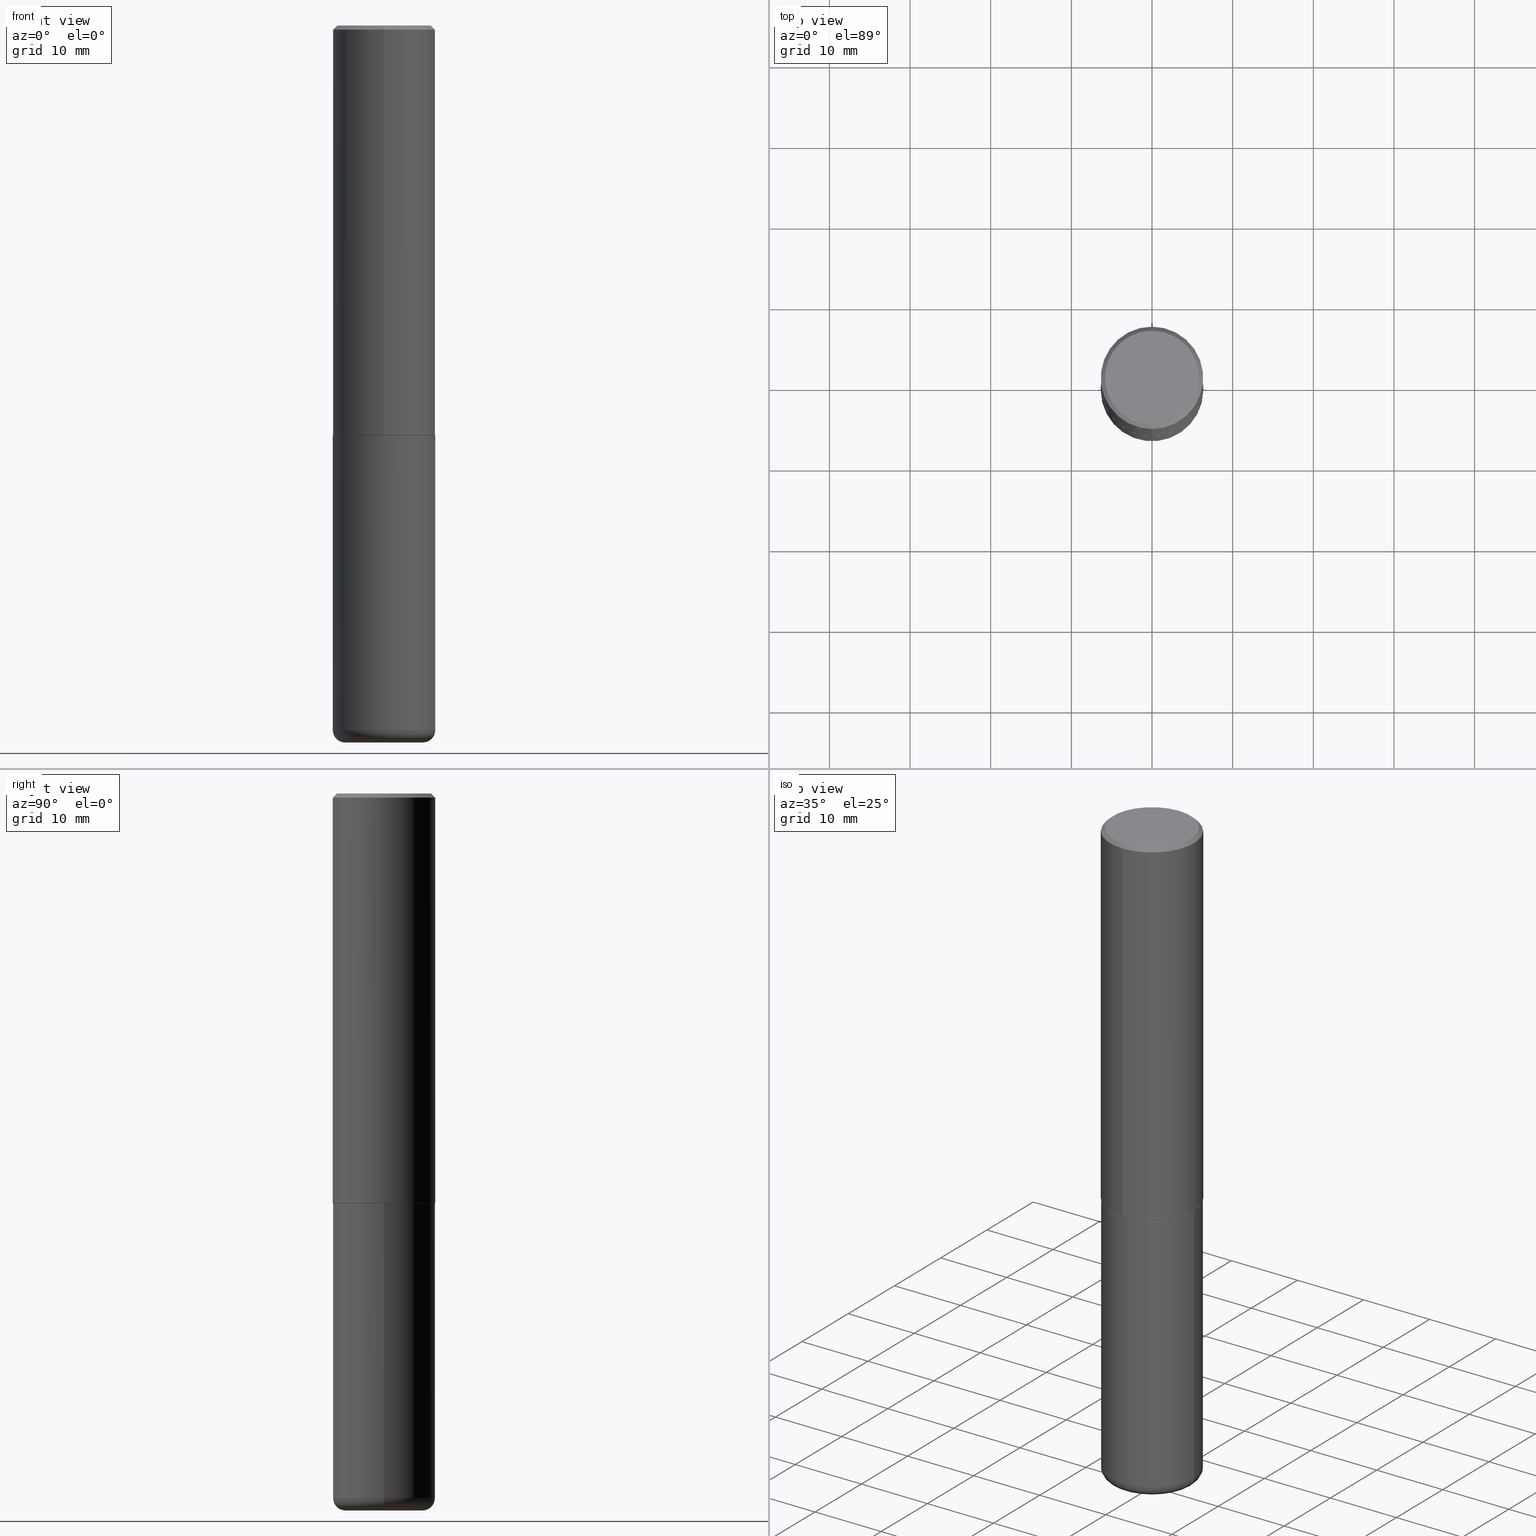
[diagram: canonical four-view strip — front | top / right | iso, engineering-drawing reading convention]
A machine part, canonical four-view strip (front | top / right | iso — engineering-drawing reading convention). The complete STEP part file that produces these views, byte-faithful:
ISO-10303-21;
HEADER;
FILE_DESCRIPTION (( 'STEP AP203' ),
    '1' );
FILE_NAME ('77363.STEP',
    '2024-05-02T19:32:36',
    ( '' ),
    ( '' ),
    'SwSTEP 2.0',
    'SolidWorks 2023',
    '' );
FILE_SCHEMA (( 'CONFIG_CONTROL_DESIGN' ));
ENDSEC;

DATA;
#1 = EDGE_LOOP ( 'NONE', ( #103, #31, #112, #63 ) ) ;
#2 = CIRCLE ( 'NONE', #313, 0.2500000000000000000 ) ;
#3 = EDGE_LOOP ( 'NONE', ( #298, #291, #269, #174 ) ) ;
#4 = CARTESIAN_POINT ( 'NONE',  ( -0.2499999999999999722, -1.023433896622016898E-14, -3.439999999999999947 ) ) ;
#5 = AXIS2_PLACEMENT_3D ( 'NONE', #301, #403, #48 ) ;
#6 = ADVANCED_FACE ( 'NONE', ( #373 ), #37, .F. ) ;
#7 = VERTEX_POINT ( 'NONE', #170 ) ;
#8 = DIRECTION ( 'NONE',  ( -2.444078991372175563E-29, 3.493471632758652550E-15, 1.000000000000000000 ) ) ;
#9 = ORIENTED_EDGE ( 'NONE', *, *, #261, .T. ) ;
#10 = CARTESIAN_POINT ( 'NONE',  ( -1.738757706743831360E-15, -0.2490000000000069935, -1.999999999999999112 ) ) ;
#11 = ORIENTED_EDGE ( 'NONE', *, *, #396, .T. ) ;
#12 = AXIS2_PLACEMENT_3D ( 'NONE', #366, #283, #413 ) ;
#13 = DIRECTION ( 'NONE',  ( -4.851104656540954809E-15, -0.7071067811865486830, -0.7071067811865462405 ) ) ;
#14 = ADVANCED_FACE ( 'NONE', ( #398 ), #368, .T. ) ;
#15 = DIRECTION ( 'NONE',  ( -2.445468806185136597E-29, 3.491481338843145583E-15, 1.000000000000000000 ) ) ;
#16 = ORIENTED_EDGE ( 'NONE', *, *, #249, .T. ) ;
#17 = APPLICATION_PROTOCOL_DEFINITION ( 'international standard', 'config_control_design', 1994, #329 ) ;
#18 = DIRECTION ( 'NONE',  ( -6.982962677686265133E-15, -1.000000000000000000, 3.291383124896702687E-15 ) ) ;
#19 = APPROVAL ( #395, 'UNSPECIFIED' ) ;
#20 = CIRCLE ( 'NONE', #254, 0.2299999999999997047 ) ;
#21 = DIRECTION ( 'NONE',  ( 1.000000000000000000, -6.982962677686266711E-15, 0.000000000000000000 ) ) ;
#22 = LOCAL_TIME ( 15, 32, 36.00000000000000000, #199 ) ;
#23 = PLANE ( 'NONE',  #365 ) ;
#24 = DIRECTION ( 'NONE',  ( 1.000000000000000000, -6.982962677686266711E-15, 4.876176775795935793E-29 ) ) ;
#25 = DIRECTION ( 'NONE',  ( -2.444078991372175563E-29, 3.493471632758652550E-15, 1.000000000000000000 ) ) ;
#26 = DIRECTION ( 'NONE',  ( -6.982962677686266711E-15, -1.000000000000000000, 3.493471632758652550E-15 ) ) ;
#27 = DIRECTION ( 'NONE',  ( 2.444078991372175563E-29, -3.493471632758652550E-15, -1.000000000000000000 ) ) ;
#28 = CIRCLE ( 'NONE', #323, 0.2500000000000000000 ) ;
#29 = UNCERTAINTY_MEASURE_WITH_UNIT (LENGTH_MEASURE( 1.000000000000000082E-05 ), #77, 'distance_accuracy_value', 'NONE');
#30 = EDGE_CURVE ( 'NONE', #194, #263, #225, .T. ) ;
#31 = ORIENTED_EDGE ( 'NONE', *, *, #183, .F. ) ;
#32 = EDGE_CURVE ( 'NONE', #399, #205, #100, .T. ) ;
#33 = CIRCLE ( 'NONE', #268, 0.2500000000000000000 ) ;
#34 = EDGE_LOOP ( 'NONE', ( #324, #415, #176, #407 ) ) ;
#35 = DIRECTION ( 'NONE',  ( -2.445468806185136597E-29, 3.491481338843145583E-15, 1.000000000000000000 ) ) ;
#36 = EDGE_LOOP ( 'NONE', ( #352, #42, #360, #195 ) ) ;
#37 = PLANE ( 'NONE',  #319 ) ;
#38 = ADVANCED_BREP_SHAPE_REPRESENTATION ( '77363', ( #230, #382, #40 ), #297 ) ;
#39 = AXIS2_PLACEMENT_3D ( 'NONE', #383, #251, #287 ) ;
#40 = AXIS2_PLACEMENT_3D ( 'NONE', #148, #273, #152 ) ;
#41 = PERSON_AND_ORGANIZATION_ROLE ( 'design_supplier' ) ;
#42 = ORIENTED_EDGE ( 'NONE', *, *, #228, .T. ) ;
#43 = ORIENTED_EDGE ( 'NONE', *, *, #183, .T. ) ;
#44 = FACE_OUTER_BOUND ( 'NONE', #36, .T. ) ;
#45 = VERTEX_POINT ( 'NONE', #139 ) ;
#46 = DIRECTION ( 'NONE',  ( 1.000000000000000000, -6.982962677686265133E-15, 4.883557194083112340E-29 ) ) ;
#47 = CARTESIAN_POINT ( 'NONE',  ( 8.412412693276869938E-29, -1.201069580562042103E-14, -3.439999999999999947 ) ) ;
#48 = DIRECTION ( 'NONE',  ( -6.982962677686266711E-15, -1.000000000000000000, 3.493471632758652550E-15 ) ) ;
#49 = VECTOR ( 'NONE', #241, 39.37007874015748143 ) ;
#50 = EDGE_LOOP ( 'NONE', ( #220, #369 ) ) ;
#51 = APPROVAL_DATE_TIME ( #374, #240 ) ;
#52 = CARTESIAN_POINT ( 'NONE',  ( 0.2499999999999999722, -1.375643647504198770E-14, -3.439999999999999947 ) ) ;
#53 = ADVANCED_FACE ( 'NONE', ( #336 ), #209, .T. ) ;
#54 = DIRECTION ( 'NONE',  ( -2.445468806185136597E-29, 3.491481338843145583E-15, 1.000000000000000000 ) ) ;
#55 = PRODUCT_DEFINITION_SHAPE ( 'NONE', 'NONE',  #197 ) ;
#56 = AXIS2_PLACEMENT_3D ( 'NONE', #59, #27, #92 ) ;
#57 = CARTESIAN_POINT ( 'NONE',  ( 0.1899999999999999745, -1.333745871438081265E-14, -3.439999999999999947 ) ) ;
#58 = DIRECTION ( 'NONE',  ( -2.444078991372175283E-29, 3.493471632758652550E-15, 1.000000000000000000 ) ) ;
#59 = CARTESIAN_POINT ( 'NONE',  ( 4.888157982744373443E-31, -6.986943265517335816E-17, -0.02000000000000009062 ) ) ;
#60 = EDGE_CURVE ( 'NONE', #70, #399, #175, .T. ) ;
#61 = CARTESIAN_POINT ( 'NONE',  ( -0.1899999999999999745, -1.066066460767623105E-14, -3.439999999999999947 ) ) ;
#62 = AXIS2_PLACEMENT_3D ( 'NONE', #328, #165, #359 ) ;
#63 = ORIENTED_EDGE ( 'NONE', *, *, #122, .T. ) ;
#64 = CARTESIAN_POINT ( 'NONE',  ( -0.2500000000000000000, -7.720472402253106025E-15, -2.000000000000000000 ) ) ;
#65 = ADVANCED_FACE ( 'NONE', ( #272 ), #211, .T. ) ;
#66 = DIRECTION ( 'NONE',  ( 4.937700262164538576E-15, 0.7071067811865437980, -0.7071067811865511255 ) ) ;
#67 = CIRCLE ( 'NONE', #151, 0.1899999999999999745 ) ;
#68 = LOCAL_TIME ( 15, 32, 36.00000000000000000, #245 ) ;
#69 = CYLINDRICAL_SURFACE ( 'NONE', #62, 0.2500000000000000000 ) ;
#70 = VERTEX_POINT ( 'NONE', #146 ) ;
#71 = ADVANCED_FACE ( 'NONE', ( #99 ), #258, .T. ) ;
#72 = VERTEX_POINT ( 'NONE', #293 ) ;
#73 = CYLINDRICAL_SURFACE ( 'NONE', #296, 0.2500000000000001110 ) ;
#74 = VECTOR ( 'NONE', #13, 39.37007874015748854 ) ;
#75 = PERSON_AND_ORGANIZATION ( #117, #248 ) ;
#76 = DIRECTION ( 'NONE',  ( -4.937700262165053702E-15, -0.7071067811866175168, 0.7071067811864775177 ) ) ;
#77 =( CONVERSION_BASED_UNIT ( 'INCH', #311 ) LENGTH_UNIT ( ) NAMED_UNIT ( #189 ) );
#78 = DIRECTION ( 'NONE',  ( -1.000000000000000000, 7.105427357600997914E-15, 0.000000000000000000 ) ) ;
#79 = CARTESIAN_POINT ( 'NONE',  ( 0.000000000000000000, 0.000000000000000000, 0.000000000000000000 ) ) ;
#80 = CARTESIAN_POINT ( 'NONE',  ( 1.606081415867839095E-15, 0.2299999999999997047, -6.474688858455407103E-16 ) ) ;
#81 = DIRECTION ( 'NONE',  ( 7.105427357601001859E-15, 1.000000000000000000, -3.491481338843145583E-15 ) ) ;
#82 = AXIS2_PLACEMENT_3D ( 'NONE', #57, #388, #86 ) ;
#83 =( LENGTH_UNIT ( ) NAMED_UNIT ( * ) SI_UNIT ( $, .METRE. ) );
#84 = ADVANCED_FACE ( 'NONE', ( #362 ), #73, .T. ) ;
#85 = DIRECTION ( 'NONE',  ( -1.000000000000000000, 6.982962677686265922E-15, -4.876176775795935793E-29 ) ) ;
#86 = DIRECTION ( 'NONE',  ( 1.000000000000000000, -6.982962677686274599E-15, 0.000000000000000000 ) ) ;
#87 = CIRCLE ( 'NONE', #144, 0.2500000000000000000 ) ;
#88 = PERSON_AND_ORGANIZATION ( #117, #248 ) ;
#89 = ORIENTED_EDGE ( 'NONE', *, *, #309, .T. ) ;
#90 = APPROVAL ( #136, 'UNSPECIFIED' ) ;
#91 = CARTESIAN_POINT ( 'NONE',  ( 4.888157982744351127E-29, -6.986943265517304311E-15, -2.000000000000000000 ) ) ;
#92 = DIRECTION ( 'NONE',  ( 6.982962677686265133E-15, 1.000000000000000000, -3.500180241882336472E-15 ) ) ;
#93 = AXIS2_PLACEMENT_3D ( 'NONE', #204, #15, #46 ) ;
#94 = CARTESIAN_POINT ( 'NONE',  ( 1.769251412042697971E-15, 0.2489999999999930047, -2.000000000000000888 ) ) ;
#95 = ADVANCED_FACE ( 'NONE', ( #198 ), #223, .T. ) ;
#96 = VERTEX_POINT ( 'NONE', #187 ) ;
#97 = LINE ( 'NONE', #256, #343 ) ;
#98 = CARTESIAN_POINT ( 'NONE',  ( 4.890937612370273194E-29, -6.982962677686291165E-15, -2.000000000000000000 ) ) ;
#99 = FACE_OUTER_BOUND ( 'NONE', #34, .T. ) ;
#100 = CIRCLE ( 'NONE', #143, 0.2500000000000000555 ) ;
#101 = CONICAL_SURFACE ( 'NONE', #56, 0.2500000000000000555, 0.7853981633974466137 ) ;
#102 = FACE_OUTER_BOUND ( 'NONE', #104, .T. ) ;
#103 = ORIENTED_EDGE ( 'NONE', *, *, #60, .F. ) ;
#104 = EDGE_LOOP ( 'NONE', ( #162, #390, #308, #356 ) ) ;
#105 = DIRECTION ( 'NONE',  ( -2.445468806185136597E-29, 3.491481338843145583E-15, 1.000000000000000000 ) ) ;
#106 = ORIENTED_EDGE ( 'NONE', *, *, #249, .F. ) ;
#107 = APPROVAL_ROLE ( '' ) ;
#108 = LINE ( 'NONE', #10, #111 ) ;
#109 = CARTESIAN_POINT ( 'NONE',  ( 8.412412693276869938E-29, -1.201069580562042103E-14, -3.439999999999999947 ) ) ;
#110 = CC_DESIGN_PERSON_AND_ORGANIZATION_ASSIGNMENT ( #276, #242, ( #114 ) ) ;
#111 = VECTOR ( 'NONE', #76, 39.37007874015748143 ) ;
#112 = ORIENTED_EDGE ( 'NONE', *, *, #418, .T. ) ;
#113 = APPROVAL_DATE_TIME ( #335, #90 ) ;
#114 = PRODUCT_DEFINITION_FORMATION_WITH_SPECIFIED_SOURCE ( 'ANY', '', #119, .NOT_KNOWN. ) ;
#115 = DATE_AND_TIME ( #243, #306 ) ;
#116 = PERSON_AND_ORGANIZATION_ROLE ( 'creator' ) ;
#117 = PERSON ( 'UNSPECIFIED', 'UNSPECIFIED', 'UNSPECIFIED', ('UNSPECIFIED'), ('UNSPECIFIED'), ('UNSPECIFIED') ) ;
#118 = CARTESIAN_POINT ( 'NONE',  ( 4.888157982744351127E-29, -6.986943265517304311E-15, -2.000000000000000000 ) ) ;
#119 = PRODUCT ( '77363', '77363', '', ( #275 ) ) ;
#120 = DIRECTION ( 'NONE',  ( -2.444078991372175563E-29, 3.493471632758652550E-15, 1.000000000000000000 ) ) ;
#121 = LINE ( 'NONE', #384, #285 ) ;
#122 = EDGE_CURVE ( 'NONE', #205, #399, #222, .T. ) ;
#123 = LOCAL_TIME ( 15, 32, 36.00000000000000000, #133 ) ;
#124 = CC_DESIGN_APPROVAL ( #19, ( #114 ) ) ;
#125 = FACE_OUTER_BOUND ( 'NONE', #325, .T. ) ;
#126 = CC_DESIGN_PERSON_AND_ORGANIZATION_ASSIGNMENT ( #181, #41, ( #114 ) ) ;
#127 = CARTESIAN_POINT ( 'NONE',  ( 8.412412693276869938E-29, -1.201069580562042103E-14, -3.439999999999999947 ) ) ;
#128 = FACE_OUTER_BOUND ( 'NONE', #3, .T. ) ;
#129 = ORIENTED_EDGE ( 'NONE', *, *, #32, .F. ) ;
#130 = VECTOR ( 'NONE', #302, 39.37007874015748143 ) ;
#131 = ADVANCED_FACE ( 'NONE', ( #128 ), #279, .T. ) ;
#132 = VECTOR ( 'NONE', #66, 39.37007874015748854 ) ;
#133 = COORDINATED_UNIVERSAL_TIME_OFFSET ( 5, 0, .BEHIND. ) ;
#134 = DIRECTION ( 'NONE',  ( 1.000000000000000000, -6.982962677686265133E-15, 4.883557194083112340E-29 ) ) ;
#135 = ORIENTED_EDGE ( 'NONE', *, *, #354, .F. ) ;
#136 = APPROVAL_STATUS ( 'not_yet_approved' ) ;
#137 = DIRECTION ( 'NONE',  ( -2.444078991372175563E-29, 3.493471632758652550E-15, 1.000000000000000000 ) ) ;
#138 = PRODUCT_RELATED_PRODUCT_CATEGORY ( 'detail', '', ( #119 ) ) ;
#139 = CARTESIAN_POINT ( 'NONE',  ( 0.1899999999999999745, -1.354694759471140096E-14, -3.500000000000000000 ) ) ;
#140 = CARTESIAN_POINT ( 'NONE',  ( 4.890937612370273194E-29, -6.982962677686291165E-15, -2.000000000000000000 ) ) ;
#141 = CARTESIAN_POINT ( 'NONE',  ( -0.2500000000000000000, 1.776356839400250465E-15, -1.229733772563726445E-29 ) ) ;
#142 = ORIENTED_EDGE ( 'NONE', *, *, #320, .T. ) ;
#143 = AXIS2_PLACEMENT_3D ( 'NONE', #370, #8, #340 ) ;
#144 = AXIS2_PLACEMENT_3D ( 'NONE', #47, #406, #375 ) ;
#145 =( NAMED_UNIT ( * ) PLANE_ANGLE_UNIT ( ) SI_UNIT ( $, .RADIAN. ) );
#146 = CARTESIAN_POINT ( 'NONE',  ( -1.646519519465166376E-15, -0.2299999999999997047, 1.115557654912385711E-15 ) ) ;
#147 = CALENDAR_DATE ( 2024, 2, 5 ) ;
#148 = CARTESIAN_POINT ( 'NONE',  ( 0.000000000000000000, 0.000000000000000000, 0.000000000000000000 ) ) ;
#149 = ADVANCED_FACE ( 'NONE', ( #212 ), #202, .F. ) ;
#150 = LINE ( 'NONE', #278, #182 ) ;
#151 = AXIS2_PLACEMENT_3D ( 'NONE', #218, #412, #155 ) ;
#152 = DIRECTION ( 'NONE',  ( 1.000000000000000000, 0.000000000000000000, 0.000000000000000000 ) ) ;
#153 = LOCAL_TIME ( 15, 32, 36.00000000000000000, #404 ) ;
#154 = CARTESIAN_POINT ( 'NONE',  ( 1.745740669421567269E-15, 0.2499999999999999722, -0.02000000000000096492 ) ) ;
#155 = DIRECTION ( 'NONE',  ( 1.000000000000000000, -6.982962677686273021E-15, 0.000000000000000000 ) ) ;
#156 = AXIS2_PLACEMENT_3D ( 'NONE', #118, #157, #347 ) ;
#157 = DIRECTION ( 'NONE',  ( -2.444078991372175563E-29, 3.493471632758652550E-15, 1.000000000000000000 ) ) ;
#158 = ORIENTED_EDGE ( 'NONE', *, *, #60, .T. ) ;
#159 = EDGE_CURVE ( 'NONE', #194, #45, #67, .T. ) ;
#160 = ORIENTED_EDGE ( 'NONE', *, *, #32, .T. ) ;
#161 = CIRCLE ( 'NONE', #82, 0.05999999999999994227 ) ;
#162 = ORIENTED_EDGE ( 'NONE', *, *, #309, .F. ) ;
#163 = DIRECTION ( 'NONE',  ( 1.000000000000000000, -6.982962677686266711E-15, 0.000000000000000000 ) ) ;
#164 = ORIENTED_EDGE ( 'NONE', *, *, #221, .F. ) ;
#165 = DIRECTION ( 'NONE',  ( -2.445468806185136597E-29, 3.491481338843145583E-15, 1.000000000000000000 ) ) ;
#166 = EDGE_LOOP ( 'NONE', ( #378, #142, #229, #338 ) ) ;
#167 = EDGE_LOOP ( 'NONE', ( #9, #371 ) ) ;
#168 = DATE_AND_TIME ( #147, #123 ) ;
#169 = CIRCLE ( 'NONE', #219, 0.2500000000000002776 ) ;
#170 = CARTESIAN_POINT ( 'NONE',  ( 1.776356839400276103E-15, 0.2499999999999932832, -1.999000000000000776 ) ) ;
#171 = CC_DESIGN_PERSON_AND_ORGANIZATION_ASSIGNMENT ( #394, #116, ( #197 ) ) ;
#172 = DIRECTION ( 'NONE',  ( -2.444078991372175563E-29, 3.493471632758652550E-15, 1.000000000000000000 ) ) ;
#173 = DIRECTION ( 'NONE',  ( 2.444078991372175283E-29, -3.493471632758652550E-15, -1.000000000000000000 ) ) ;
#174 = ORIENTED_EDGE ( 'NONE', *, *, #372, .F. ) ;
#175 = LINE ( 'NONE', #307, #74 ) ;
#176 = ORIENTED_EDGE ( 'NONE', *, *, #396, .F. ) ;
#177 = EDGE_CURVE ( 'NONE', #72, #96, #386, .T. ) ;
#178 = PERSON_AND_ORGANIZATION ( #117, #248 ) ;
#179 = CARTESIAN_POINT ( 'NONE',  ( 4.888157982744351127E-29, -6.986943265517304311E-15, -2.000000000000000000 ) ) ;
#180 = CARTESIAN_POINT ( 'NONE',  ( -0.1899999999999999745, -1.055224622711349575E-14, -3.500000000000000000 ) ) ;
#181 = PERSON_AND_ORGANIZATION ( #117, #248 ) ;
#182 = VECTOR ( 'NONE', #409, 39.37007874015748143 ) ;
#183 = EDGE_CURVE ( 'NONE', #300, #70, #20, .T. ) ;
#184 = DESIGN_CONTEXT ( 'detailed design', #329, 'design' ) ;
#185 = DIRECTION ( 'NONE',  ( 6.982962677686265922E-15, 1.000000000000000000, -3.493471632758652550E-15 ) ) ;
#186 = APPROVAL_ROLE ( '' ) ;
#187 = CARTESIAN_POINT ( 'NONE',  ( 1.772804125721499462E-15, 0.2489999999999930047, -2.000000000000000888 ) ) ;
#188 = EDGE_CURVE ( 'NONE', #393, #267, #2, .T. ) ;
#189 = DIMENSIONAL_EXPONENTS ( 1.000000000000000000, 0.000000000000000000, 0.000000000000000000, 0.000000000000000000, 0.000000000000000000, 0.000000000000000000, 0.000000000000000000 ) ;
#190 = EDGE_LOOP ( 'NONE', ( #164, #292, #16, #235 ) ) ;
#191 = DIRECTION ( 'NONE',  ( 2.438088387897960049E-29, -3.491481338843145188E-15, -1.000000000000000000 ) ) ;
#192 = PERSON_AND_ORGANIZATION ( #117, #248 ) ;
#193 = CONICAL_SURFACE ( 'NONE', #232, 0.2489999999999999991, 0.7853981633975507526 ) ;
#194 = VERTEX_POINT ( 'NONE', #180 ) ;
#195 = ORIENTED_EDGE ( 'NONE', *, *, #358, .F. ) ;
#196 = ORIENTED_EDGE ( 'NONE', *, *, #221, .T. ) ;
#197 = PRODUCT_DEFINITION ( 'UNKNOWN', '', #114, #184 ) ;
#198 = FACE_OUTER_BOUND ( 'NONE', #50, .T. ) ;
#199 = COORDINATED_UNIVERSAL_TIME_OFFSET ( 5, 0, .BEHIND. ) ;
#200 = AXIS2_PLACEMENT_3D ( 'NONE', #91, #25, #345 ) ;
#201 = EDGE_LOOP ( 'NONE', ( #135, #158, #160, #231 ) ) ;
#202 = PLANE ( 'NONE',  #331 ) ;
#203 = CARTESIAN_POINT ( 'NONE',  ( 1.675911042644703182E-15, 0.2299999999999997047, -4.914392961565924424E-16 ) ) ;
#204 = CARTESIAN_POINT ( 'NONE',  ( 8.412412693276869938E-29, -1.201069580562042103E-14, -3.439999999999999947 ) ) ;
#205 = VERTEX_POINT ( 'NONE', #344 ) ;
#206 = CALENDAR_DATE ( 2024, 2, 5 ) ;
#207 = PERSON_AND_ORGANIZATION ( #117, #248 ) ;
#208 = DIRECTION ( 'NONE',  ( 6.982962677686265133E-15, 1.000000000000000000, -3.500180241882336472E-15 ) ) ;
#209 = CYLINDRICAL_SURFACE ( 'NONE', #5, 0.2500000000000001110 ) ;
#210 = ADVANCED_FACE ( 'NONE', ( #286 ), #259, .T. ) ;
#211 = CONICAL_SURFACE ( 'NONE', #321, 0.2500000000000000555, 0.7853981633974466137 ) ;
#212 = FACE_OUTER_BOUND ( 'NONE', #391, .T. ) ;
#213 = ORIENTED_EDGE ( 'NONE', *, *, #228, .F. ) ;
#214 = SHAPE_DEFINITION_REPRESENTATION ( #55, #38 ) ;
#215 = DIRECTION ( 'NONE',  ( -2.444078991372175563E-29, 3.493471632758652550E-15, 1.000000000000000000 ) ) ;
#216 = DIRECTION ( 'NONE',  ( -2.444078991372175563E-29, 3.493471632758652550E-15, 1.000000000000000000 ) ) ;
#217 = ADVANCED_FACE ( 'NONE', ( #125 ), #23, .F. ) ;
#218 = CARTESIAN_POINT ( 'NONE',  ( 8.559140821647976968E-29, -1.222018468595100934E-14, -3.500000000000000000 ) ) ;
#219 = AXIS2_PLACEMENT_3D ( 'NONE', #314, #120, #244 ) ;
#220 = ORIENTED_EDGE ( 'NONE', *, *, #317, .F. ) ;
#221 = EDGE_CURVE ( 'NONE', #7, #205, #121, .T. ) ;
#222 = CIRCLE ( 'NONE', #39, 0.2500000000000000555 ) ;
#223 = PLANE ( 'NONE',  #408 ) ;
#224 = ADVANCED_FACE ( 'NONE', ( #353 ), #101, .T. ) ;
#225 = CIRCLE ( 'NONE', #246, 0.05999999999999994227 ) ;
#226 = VERTEX_POINT ( 'NONE', #52 ) ;
#227 = CIRCLE ( 'NONE', #349, 0.1899999999999999745 ) ;
#228 = EDGE_CURVE ( 'NONE', #96, #72, #289, .T. ) ;
#229 = ORIENTED_EDGE ( 'NONE', *, *, #405, .F. ) ;
#230 = MANIFOLD_SOLID_BREP ( 'Body-Move/Copy2[1]', #401 ) ;
#231 = ORIENTED_EDGE ( 'NONE', *, *, #418, .F. ) ;
#232 = AXIS2_PLACEMENT_3D ( 'NONE', #233, #172, #367 ) ;
#233 = CARTESIAN_POINT ( 'NONE',  ( 4.888157982744351127E-29, -6.986943265517304311E-15, -2.000000000000000000 ) ) ;
#234 = ORIENTED_EDGE ( 'NONE', *, *, #255, .F. ) ;
#235 = ORIENTED_EDGE ( 'NONE', *, *, #122, .F. ) ;
#236 = APPROVAL_ROLE ( '' ) ;
#237 = AXIS2_PLACEMENT_3D ( 'NONE', #109, #105, #134 ) ;
#238 = APPROVAL_PERSON_ORGANIZATION ( #178, #240, #186 ) ;
#239 =( NAMED_UNIT ( * ) SI_UNIT ( $, .STERADIAN. ) SOLID_ANGLE_UNIT ( ) );
#240 = APPROVAL ( #310, 'UNSPECIFIED' ) ;
#241 = DIRECTION ( 'NONE',  ( 5.024295867788576727E-15, 0.7071067811866224018, 0.7071067811864726327 ) ) ;
#242 = PERSON_AND_ORGANIZATION_ROLE ( 'creator' ) ;
#243 = CALENDAR_DATE ( 2024, 2, 5 ) ;
#244 = DIRECTION ( 'NONE',  ( -6.982962677686265922E-15, -1.000000000000000000, 3.278217592397112312E-15 ) ) ;
#245 = COORDINATED_UNIVERSAL_TIME_OFFSET ( 5, 0, .BEHIND. ) ;
#246 = AXIS2_PLACEMENT_3D ( 'NONE', #61, #81, #78 ) ;
#247 = CLOSED_SHELL ( 'NONE', ( #210, #84, #65, #224, #53, #295, #217, #149 ) ) ;
#248 = ORGANIZATION ( 'UNSPECIFIED', 'UNSPECIFIED', '' ) ;
#249 = EDGE_CURVE ( 'NONE', #334, #399, #150, .T. ) ;
#250 = DIRECTION ( 'NONE',  ( -6.982962677686265922E-15, -1.000000000000000000, 3.493471632758652550E-15 ) ) ;
#251 = DIRECTION ( 'NONE',  ( -2.444078991372175563E-29, 3.493471632758652550E-15, 1.000000000000000000 ) ) ;
#252 = LINE ( 'NONE', #154, #132 ) ;
#253 = DIRECTION ( 'NONE',  ( -2.445468806185136597E-29, 3.491481338843145583E-15, 1.000000000000000000 ) ) ;
#254 = AXIS2_PLACEMENT_3D ( 'NONE', #315, #215, #250 ) ;
#255 = EDGE_CURVE ( 'NONE', #226, #267, #97, .T. ) ;
#256 = CARTESIAN_POINT ( 'NONE',  ( 0.2500000000000000000, -1.745740669421566678E-15, 1.219044193948983948E-29 ) ) ;
#257 = ORIENTED_EDGE ( 'NONE', *, *, #177, .F. ) ;
#258 = TOROIDAL_SURFACE ( 'NONE', #237, 0.1899999999999999745, 0.05999999999999995615 ) ;
#259 = CONICAL_SURFACE ( 'NONE', #156, 0.2489999999999999991, 0.7853981633975507526 ) ;
#260 = DIRECTION ( 'NONE',  ( 2.444078991372175563E-29, -3.493471632758652550E-15, -1.000000000000000000 ) ) ;
#261 = EDGE_CURVE ( 'NONE', #267, #393, #28, .T. ) ;
#262 = DATE_TIME_ROLE ( 'creation_date' ) ;
#263 = VERTEX_POINT ( 'NONE', #4 ) ;
#264 = SECURITY_CLASSIFICATION_LEVEL ( 'unclassified' ) ;
#265 = DATE_AND_TIME ( #274, #22 ) ;
#266 = DIRECTION ( 'NONE',  ( 2.438088387897960049E-29, -3.491481338843145188E-15, -1.000000000000000000 ) ) ;
#267 = VERTEX_POINT ( 'NONE', #392 ) ;
#268 = AXIS2_PLACEMENT_3D ( 'NONE', #127, #253, #385 ) ;
#269 = ORIENTED_EDGE ( 'NONE', *, *, #327, .T. ) ;
#270 = ADVANCED_FACE ( 'NONE', ( #102 ), #69, .T. ) ;
#271 = DATE_TIME_ROLE ( 'classification_date' ) ;
#272 = FACE_OUTER_BOUND ( 'NONE', #201, .T. ) ;
#273 = DIRECTION ( 'NONE',  ( 0.000000000000000000, 0.000000000000000000, 1.000000000000000000 ) ) ;
#274 = CALENDAR_DATE ( 2024, 2, 5 ) ;
#275 = MECHANICAL_CONTEXT ( 'NONE', #303, 'mechanical' ) ;
#276 = PERSON_AND_ORGANIZATION ( #117, #248 ) ;
#277 = CC_DESIGN_PERSON_AND_ORGANIZATION_ASSIGNMENT ( #88, #351, ( #119 ) ) ;
#278 = CARTESIAN_POINT ( 'NONE',  ( -1.745740669421567467E-15, -0.2500000000000001110, 8.733679081896635319E-16 ) ) ;
#279 = TOROIDAL_SURFACE ( 'NONE', #93, 0.1899999999999999745, 0.05999999999999995615 ) ;
#280 = CC_DESIGN_APPROVAL ( #240, ( #197 ) ) ;
#281 = DIRECTION ( 'NONE',  ( 1.000000000000000000, -6.982962677686273021E-15, 0.000000000000000000 ) ) ;
#282 = CARTESIAN_POINT ( 'NONE',  ( 4.890937612370273194E-29, -6.982962677686291165E-15, -2.000000000000000000 ) ) ;
#283 = DIRECTION ( 'NONE',  ( -2.444078991372175563E-29, 3.493471632758652550E-15, 1.000000000000000000 ) ) ;
#284 = EDGE_CURVE ( 'NONE', #72, #334, #108, .T. ) ;
#285 = VECTOR ( 'NONE', #379, 39.37007874015748143 ) ;
#286 = FACE_OUTER_BOUND ( 'NONE', #166, .T. ) ;
#287 = DIRECTION ( 'NONE',  ( -6.982962677686265133E-15, -1.000000000000000000, 3.500180241882336472E-15 ) ) ;
#288 = CC_DESIGN_DATE_AND_TIME_ASSIGNMENT ( #265, #271, ( #410 ) ) ;
#289 = CIRCLE ( 'NONE', #417, 0.2489999999999999991 ) ;
#290 = CARTESIAN_POINT ( 'NONE',  ( 8.559140821647976968E-29, -1.222018468595100934E-14, -3.500000000000000000 ) ) ;
#291 = ORIENTED_EDGE ( 'NONE', *, *, #159, .T. ) ;
#292 = ORIENTED_EDGE ( 'NONE', *, *, #358, .T. ) ;
#293 = CARTESIAN_POINT ( 'NONE',  ( -1.738757706743831360E-15, -0.2490000000000069935, -1.999999999999999112 ) ) ;
#294 = ORIENTED_EDGE ( 'NONE', *, *, #354, .T. ) ;
#295 = ADVANCED_FACE ( 'NONE', ( #44 ), #193, .T. ) ;
#296 = AXIS2_PLACEMENT_3D ( 'NONE', #333, #137, #26 ) ;
#297 =( GEOMETRIC_REPRESENTATION_CONTEXT ( 3 ) GLOBAL_UNCERTAINTY_ASSIGNED_CONTEXT ( ( #29 ) ) GLOBAL_UNIT_ASSIGNED_CONTEXT ( ( #77, #145, #239 ) ) REPRESENTATION_CONTEXT ( 'NONE', 'WORKASPACE' ) );
#298 = ORIENTED_EDGE ( 'NONE', *, *, #30, .F. ) ;
#299 = CARTESIAN_POINT ( 'NONE',  ( 8.559140821647976968E-29, -1.222018468595100934E-14, -3.500000000000000000 ) ) ;
#300 = VERTEX_POINT ( 'NONE', #203 ) ;
#301 = CARTESIAN_POINT ( 'NONE',  ( 0.000000000000000000, 0.000000000000000000, 0.000000000000000000 ) ) ;
#302 = DIRECTION ( 'NONE',  ( -2.445468806185136877E-29, 3.491481338843145188E-15, 1.000000000000000000 ) ) ;
#303 = APPLICATION_CONTEXT ( 'configuration controlled 3d designs of mechanical parts and assemblies' ) ;
#304 = AXIS2_PLACEMENT_3D ( 'NONE', #79, #341, #24 ) ;
#305 = CIRCLE ( 'NONE', #12, 0.2500000000000002776 ) ;
#306 = LOCAL_TIME ( 15, 32, 36.00000000000000000, #316 ) ;
#307 = CARTESIAN_POINT ( 'NONE',  ( -1.715124499442882496E-15, -0.2500000000000001110, -0.01999999999999921632 ) ) ;
#308 = ORIENTED_EDGE ( 'NONE', *, *, #255, .T. ) ;
#309 = EDGE_CURVE ( 'NONE', #263, #393, #337, .T. ) ;
#310 = APPROVAL_STATUS ( 'not_yet_approved' ) ;
#311 = LENGTH_MEASURE_WITH_UNIT ( LENGTH_MEASURE( 0.02539999999999999897 ), #83 );
#312 = DIRECTION ( 'NONE',  ( -2.444078991372175563E-29, 3.493471632758652550E-15, 1.000000000000000000 ) ) ;
#313 = AXIS2_PLACEMENT_3D ( 'NONE', #282, #54, #21 ) ;
#314 = CARTESIAN_POINT ( 'NONE',  ( 4.885713903752978284E-29, -6.983449793884546288E-15, -1.998999999999999888 ) ) ;
#315 = CARTESIAN_POINT ( 'NONE',  ( -7.626972843823584403E-45, 1.090169890898625670E-30, 3.120591793778966343E-16 ) ) ;
#316 = COORDINATED_UNIVERSAL_TIME_OFFSET ( 5, 0, .BEHIND. ) ;
#317 = EDGE_CURVE ( 'NONE', #45, #194, #227, .T. ) ;
#318 = DIRECTION ( 'NONE',  ( -6.982962677686265922E-15, -1.000000000000000000, 3.493471632758652550E-15 ) ) ;
#319 = AXIS2_PLACEMENT_3D ( 'NONE', #140, #266, #85 ) ;
#320 = EDGE_CURVE ( 'NONE', #96, #7, #411, .T. ) ;
#321 = AXIS2_PLACEMENT_3D ( 'NONE', #326, #260, #208 ) ;
#322 = PERSON_AND_ORGANIZATION_ROLE ( 'classification_officer' ) ;
#323 = AXIS2_PLACEMENT_3D ( 'NONE', #98, #35, #163 ) ;
#324 = ORIENTED_EDGE ( 'NONE', *, *, #317, .T. ) ;
#325 = EDGE_LOOP ( 'NONE', ( #257, #213 ) ) ;
#326 = CARTESIAN_POINT ( 'NONE',  ( 4.888157982744373443E-31, -6.986943265517335816E-17, -0.02000000000000009062 ) ) ;
#327 = EDGE_CURVE ( 'NONE', #45, #226, #161, .T. ) ;
#328 = CARTESIAN_POINT ( 'NONE',  ( 0.000000000000000000, 0.000000000000000000, 0.000000000000000000 ) ) ;
#329 = APPLICATION_CONTEXT ( 'configuration controlled 3d designs of mechanical parts and assemblies' ) ;
#330 = DIRECTION ( 'NONE',  ( -1.000000000000000000, 6.982962677686265922E-15, -4.876176775795935793E-29 ) ) ;
#331 = AXIS2_PLACEMENT_3D ( 'NONE', #80, #173, #185 ) ;
#332 = APPROVAL_PERSON_ORGANIZATION ( #75, #90, #236 ) ;
#333 = CARTESIAN_POINT ( 'NONE',  ( 0.000000000000000000, 0.000000000000000000, 0.000000000000000000 ) ) ;
#334 = VERTEX_POINT ( 'NONE', #376 ) ;
#335 = DATE_AND_TIME ( #206, #153 ) ;
#336 = FACE_OUTER_BOUND ( 'NONE', #190, .T. ) ;
#337 = LINE ( 'NONE', #141, #130 ) ;
#338 = ORIENTED_EDGE ( 'NONE', *, *, #284, .F. ) ;
#339 = EDGE_LOOP ( 'NONE', ( #400, #196, #129, #106 ) ) ;
#340 = DIRECTION ( 'NONE',  ( -6.982962677686265133E-15, -1.000000000000000000, 3.500180241882336472E-15 ) ) ;
#341 = DIRECTION ( 'NONE',  ( -2.445468806185136597E-29, 3.491481338843145583E-15, 1.000000000000000000 ) ) ;
#342 = DIRECTION ( 'NONE',  ( -2.445468806185136597E-29, 3.491481338843145583E-15, 1.000000000000000000 ) ) ;
#343 = VECTOR ( 'NONE', #389, 39.37007874015748143 ) ;
#344 = CARTESIAN_POINT ( 'NONE',  ( 1.745740669421567269E-15, 0.2499999999999999722, -0.02000000000000096492 ) ) ;
#345 = DIRECTION ( 'NONE',  ( -6.982962677686265133E-15, -1.000000000000000000, 3.291383124896702687E-15 ) ) ;
#346 = DIRECTION ( 'NONE',  ( -6.982962677686265922E-15, -1.000000000000000000, 3.493471632758652550E-15 ) ) ;
#347 = DIRECTION ( 'NONE',  ( -6.982962677686265133E-15, -1.000000000000000000, 3.291383124896702687E-15 ) ) ;
#348 = APPROVAL_DATE_TIME ( #115, #19 ) ;
#349 = AXIS2_PLACEMENT_3D ( 'NONE', #299, #342, #281 ) ;
#350 = CALENDAR_DATE ( 2024, 2, 5 ) ;
#351 = PERSON_AND_ORGANIZATION_ROLE ( 'design_owner' ) ;
#352 = ORIENTED_EDGE ( 'NONE', *, *, #320, .F. ) ;
#353 = FACE_OUTER_BOUND ( 'NONE', #1, .T. ) ;
#354 = EDGE_CURVE ( 'NONE', #70, #300, #380, .T. ) ;
#355 = APPROVAL_PERSON_ORGANIZATION ( #207, #19, #107 ) ;
#356 = ORIENTED_EDGE ( 'NONE', *, *, #188, .F. ) ;
#357 = CC_DESIGN_SECURITY_CLASSIFICATION ( #410, ( #114 ) ) ;
#358 = EDGE_CURVE ( 'NONE', #7, #334, #169, .T. ) ;
#359 = DIRECTION ( 'NONE',  ( 1.000000000000000000, -6.982962677686266711E-15, 4.876176775795935793E-29 ) ) ;
#360 = ORIENTED_EDGE ( 'NONE', *, *, #284, .T. ) ;
#361 = EDGE_LOOP ( 'NONE', ( #11, #89, #364, #234 ) ) ;
#362 = FACE_OUTER_BOUND ( 'NONE', #339, .T. ) ;
#363 = CC_DESIGN_PERSON_AND_ORGANIZATION_ASSIGNMENT ( #192, #322, ( #410 ) ) ;
#364 = ORIENTED_EDGE ( 'NONE', *, *, #261, .F. ) ;
#365 = AXIS2_PLACEMENT_3D ( 'NONE', #416, #58, #318 ) ;
#366 = CARTESIAN_POINT ( 'NONE',  ( 4.885713903752978284E-29, -6.983449793884546288E-15, -1.998999999999999888 ) ) ;
#367 = DIRECTION ( 'NONE',  ( -6.982962677686265133E-15, -1.000000000000000000, 3.291383124896702687E-15 ) ) ;
#368 = CYLINDRICAL_SURFACE ( 'NONE', #304, 0.2500000000000000000 ) ;
#369 = ORIENTED_EDGE ( 'NONE', *, *, #159, .F. ) ;
#370 = CARTESIAN_POINT ( 'NONE',  ( 4.888157982744373443E-31, -6.986943265517335816E-17, -0.02000000000000009062 ) ) ;
#371 = ORIENTED_EDGE ( 'NONE', *, *, #188, .T. ) ;
#372 = EDGE_CURVE ( 'NONE', #263, #226, #33, .T. ) ;
#373 = FACE_OUTER_BOUND ( 'NONE', #167, .T. ) ;
#374 = DATE_AND_TIME ( #350, #68 ) ;
#375 = DIRECTION ( 'NONE',  ( 1.000000000000000000, -6.982962677686270655E-15, 0.000000000000000000 ) ) ;
#376 = CARTESIAN_POINT ( 'NONE',  ( -1.745740669421519543E-15, -0.2500000000000072720, -1.998999999999999000 ) ) ;
#377 = CC_DESIGN_DATE_AND_TIME_ASSIGNMENT ( #168, #262, ( #197 ) ) ;
#378 = ORIENTED_EDGE ( 'NONE', *, *, #177, .T. ) ;
#379 = DIRECTION ( 'NONE',  ( -2.444078991372175563E-29, 3.493471632758652550E-15, 1.000000000000000000 ) ) ;
#380 = CIRCLE ( 'NONE', #402, 0.2299999999999997047 ) ;
#381 = APPLICATION_PROTOCOL_DEFINITION ( 'international standard', 'config_control_design', 1994, #303 ) ;
#382 = MANIFOLD_SOLID_BREP ( 'Body-Move/Copy2[2]', #247 ) ;
#383 = CARTESIAN_POINT ( 'NONE',  ( 4.888157982744373443E-31, -6.986943265517335816E-17, -0.02000000000000009062 ) ) ;
#384 = CARTESIAN_POINT ( 'NONE',  ( 1.776356839400251254E-15, 0.2500000000000001110, -8.733679081896635319E-16 ) ) ;
#385 = DIRECTION ( 'NONE',  ( 1.000000000000000000, -6.982962677686270655E-15, 0.000000000000000000 ) ) ;
#386 = CIRCLE ( 'NONE', #200, 0.2489999999999999991 ) ;
#387 = CC_DESIGN_APPROVAL ( #90, ( #410 ) ) ;
#388 = DIRECTION ( 'NONE',  ( -6.982962677686266711E-15, -1.000000000000000000, 3.491481338843145583E-15 ) ) ;
#389 = DIRECTION ( 'NONE',  ( -2.445468806185136877E-29, 3.491481338843145188E-15, 1.000000000000000000 ) ) ;
#390 = ORIENTED_EDGE ( 'NONE', *, *, #372, .T. ) ;
#391 = EDGE_LOOP ( 'NONE', ( #43, #294 ) ) ;
#392 = CARTESIAN_POINT ( 'NONE',  ( 0.2500000000000000000, -8.728703347107857054E-15, -2.000000000000000000 ) ) ;
#393 = VERTEX_POINT ( 'NONE', #64 ) ;
#394 = PERSON_AND_ORGANIZATION ( #117, #248 ) ;
#395 = APPROVAL_STATUS ( 'not_yet_approved' ) ;
#396 = EDGE_CURVE ( 'NONE', #226, #263, #87, .T. ) ;
#397 = CARTESIAN_POINT ( 'NONE',  ( -1.715124499442882496E-15, -0.2500000000000001110, -0.01999999999999921632 ) ) ;
#398 = FACE_OUTER_BOUND ( 'NONE', #361, .T. ) ;
#399 = VERTEX_POINT ( 'NONE', #397 ) ;
#400 = ORIENTED_EDGE ( 'NONE', *, *, #405, .T. ) ;
#401 = CLOSED_SHELL ( 'NONE', ( #14, #71, #6, #270, #131, #95 ) ) ;
#402 = AXIS2_PLACEMENT_3D ( 'NONE', #414, #216, #346 ) ;
#403 = DIRECTION ( 'NONE',  ( -2.444078991372175563E-29, 3.493471632758652550E-15, 1.000000000000000000 ) ) ;
#404 = COORDINATED_UNIVERSAL_TIME_OFFSET ( 5, 0, .BEHIND. ) ;
#405 = EDGE_CURVE ( 'NONE', #334, #7, #305, .T. ) ;
#406 = DIRECTION ( 'NONE',  ( -2.445468806185136597E-29, 3.491481338843145583E-15, 1.000000000000000000 ) ) ;
#407 = ORIENTED_EDGE ( 'NONE', *, *, #327, .F. ) ;
#408 = AXIS2_PLACEMENT_3D ( 'NONE', #290, #191, #330 ) ;
#409 = DIRECTION ( 'NONE',  ( -2.444078991372175563E-29, 3.493471632758652550E-15, 1.000000000000000000 ) ) ;
#410 = SECURITY_CLASSIFICATION ( '', '', #264 ) ;
#411 = LINE ( 'NONE', #94, #49 ) ;
#412 = DIRECTION ( 'NONE',  ( -2.445468806185136597E-29, 3.491481338843145583E-15, 1.000000000000000000 ) ) ;
#413 = DIRECTION ( 'NONE',  ( -6.982962677686265922E-15, -1.000000000000000000, 3.278217592397112312E-15 ) ) ;
#414 = CARTESIAN_POINT ( 'NONE',  ( -7.626972843823584403E-45, 1.090169890898625670E-30, 3.120591793778966343E-16 ) ) ;
#415 = ORIENTED_EDGE ( 'NONE', *, *, #30, .T. ) ;
#416 = CARTESIAN_POINT ( 'NONE',  ( 4.888157982744351127E-29, -6.986943265517304311E-15, -2.000000000000000000 ) ) ;
#417 = AXIS2_PLACEMENT_3D ( 'NONE', #179, #312, #18 ) ;
#418 = EDGE_CURVE ( 'NONE', #300, #205, #252, .T. ) ;
ENDSEC;
END-ISO-10303-21;
